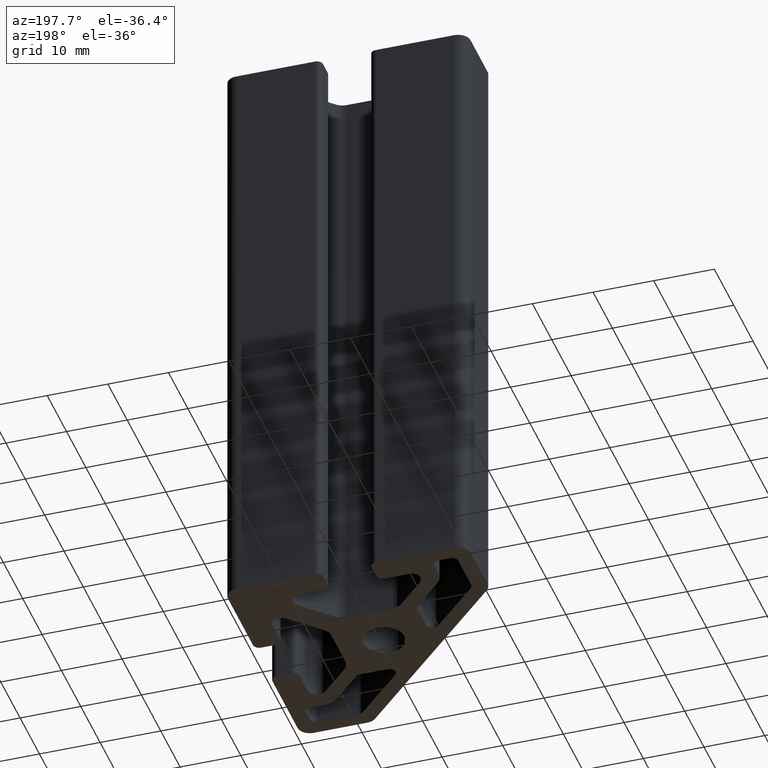
[diagram: clean part render]
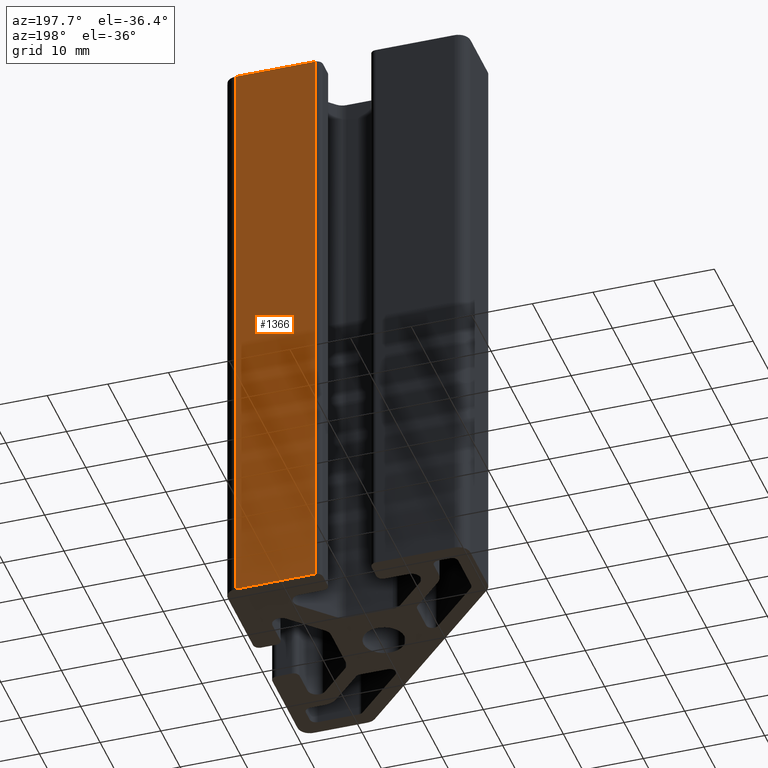
[diagram: same view with one face highlighted and labeled with its STEP entity id]
A machine part, auxiliary view. The second image highlights one B-rep face of the part: STEP entity #1366.
In plain terms, the highlighted planar face has unit normal (0, 1, 0).
Its self-contained STEP definition (entity closure, byte-faithful):
#188=FACE_OUTER_BOUND('',#261,.T.);
#261=EDGE_LOOP('',(#1184,#1185,#1186,#1187));
#317=LINE('',#2073,#449);
#394=LINE('',#2302,#526);
#397=LINE('',#2311,#529);
#398=LINE('',#2312,#530);
#449=VECTOR('',#1666,100.);
#526=VECTOR('',#1891,13.);
#529=VECTOR('',#1902,100.);
#530=VECTOR('',#1903,13.);
#583=VERTEX_POINT('',#2069);
#585=VERTEX_POINT('',#2072);
#663=VERTEX_POINT('',#2300);
#665=VERTEX_POINT('',#2310);
#742=EDGE_CURVE('',#583,#585,#317,.T.);
#857=EDGE_CURVE('',#583,#663,#394,.T.);
#861=EDGE_CURVE('',#665,#663,#397,.T.);
#862=EDGE_CURVE('',#585,#665,#398,.T.);
#1184=ORIENTED_EDGE('',*,*,#742,.F.);
#1185=ORIENTED_EDGE('',*,*,#857,.T.);
#1186=ORIENTED_EDGE('',*,*,#861,.F.);
#1187=ORIENTED_EDGE('',*,*,#862,.F.);
#1299=PLANE('',#1503);
#1366=ADVANCED_FACE('',(#188),#1299,.T.);
#1503=AXIS2_PLACEMENT_3D('',#2309,#1900,#1901);
#1666=DIRECTION('',(0.,0.,-1.));
#1891=DIRECTION('',(1.,0.,0.));
#1900=DIRECTION('center_axis',(0.,1.,0.));
#1901=DIRECTION('ref_axis',(-1.,0.,0.));
#1902=DIRECTION('',(0.,0.,1.));
#1903=DIRECTION('',(1.,0.,0.));
#2069=CARTESIAN_POINT('',(5.,20.,100.));
#2072=CARTESIAN_POINT('',(5.,20.,0.));
#2073=CARTESIAN_POINT('',(5.,20.,0.));
#2300=CARTESIAN_POINT('',(18.,20.,100.));
#2302=CARTESIAN_POINT('',(9.,20.,100.));
#2309=CARTESIAN_POINT('Origin',(18.,20.,0.));
#2310=CARTESIAN_POINT('',(18.,20.,0.));
#2311=CARTESIAN_POINT('',(18.,20.,0.));
#2312=CARTESIAN_POINT('',(9.,20.,0.));